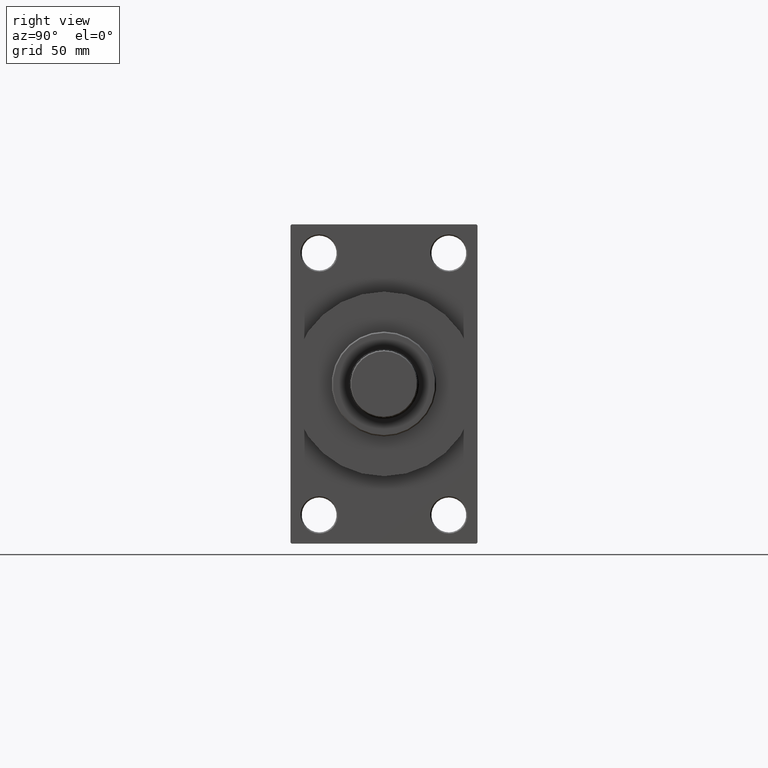
[diagram: clean part render]
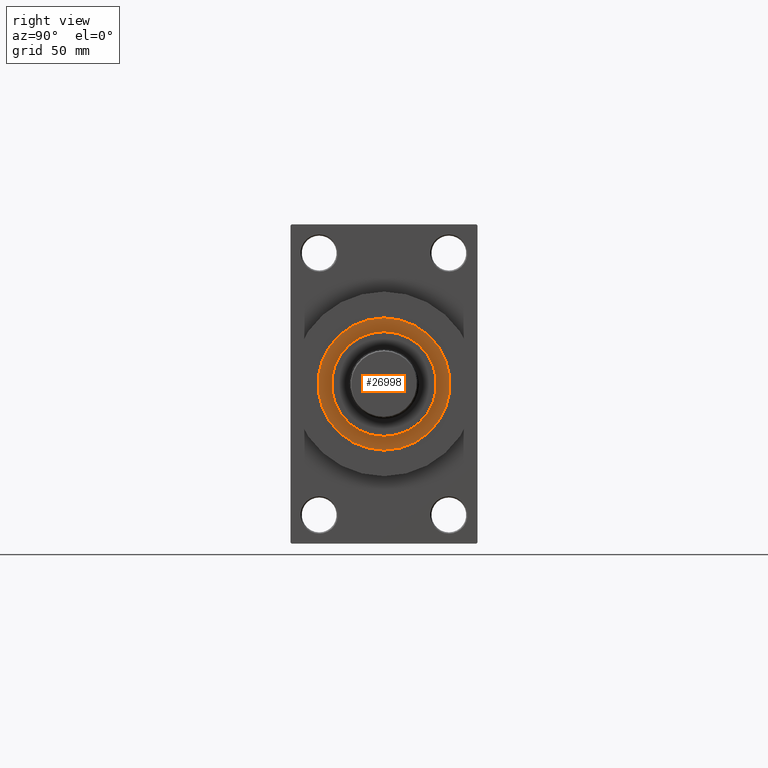
[diagram: same view with one face highlighted and labeled with its STEP entity id]
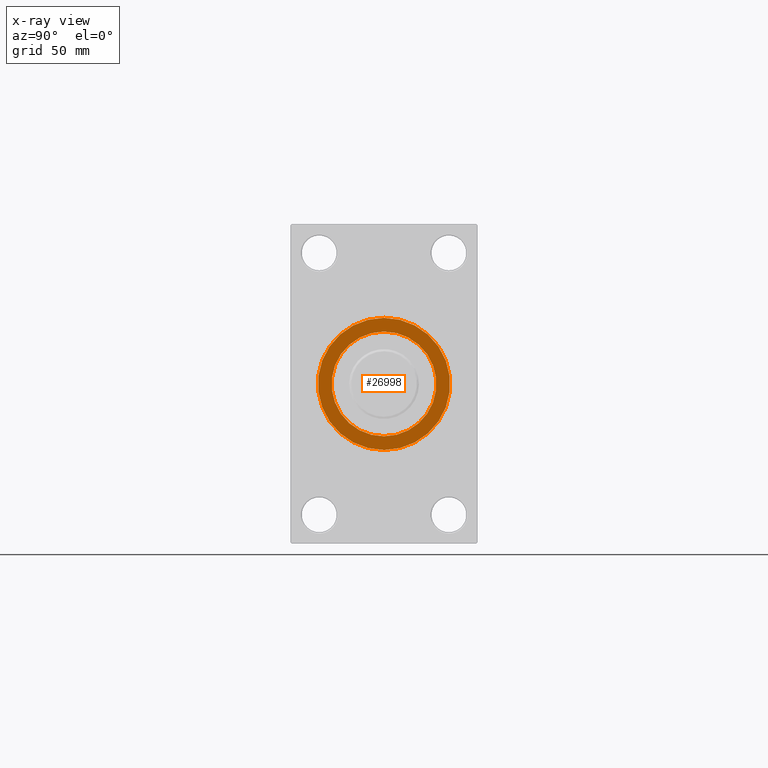
[diagram: x-ray of the same camera — body ghosted, the highlighted face saturated]
A machine part, right view. The second image highlights one B-rep face of the part: STEP entity #26998.
The next image is the same camera in x-ray: the body ghosted, the highlighted face saturated — about 0% of this face is hidden behind the body in this view.
In plain terms, the highlighted planar face has unit normal (1, 0, 0).
Its self-contained STEP definition (entity closure, byte-faithful):
#464 = FACE_BOUND ( 'NONE', #25136, .T. ) ;
#727 = CARTESIAN_POINT ( 'NONE',  ( 21.00000000000000000, 2.571758278209441661E-15, 43.25999999999999801 ) ) ;
#868 = AXIS2_PLACEMENT_3D ( 'NONE', #39634, #24213, #36006 ) ;
#6847 = ORIENTED_EDGE ( 'NONE', *, *, #13942, .F. ) ;
#9171 = EDGE_CURVE ( 'NONE', #32165, #22801, #13075, .T. ) ;
#11249 = EDGE_CURVE ( 'NONE', #32788, #43186, #37070, .T. ) ;
#11320 = CARTESIAN_POINT ( 'NONE',  ( 0.000000000000000000, 0.000000000000000000, 43.25999999999999801 ) ) ;
#11653 = EDGE_LOOP ( 'NONE', ( #27354, #43624 ) ) ;
#13075 = CIRCLE ( 'NONE', #29230, 21.00000000000000000 ) ;
#13942 = EDGE_CURVE ( 'NONE', #22801, #32165, #33269, .T. ) ;
#14758 = CARTESIAN_POINT ( 'NONE',  ( 0.000000000000000000, 0.000000000000000000, 43.25999999999999801 ) ) ;
#14947 = PLANE ( 'NONE',  #32890 ) ;
#15236 = DIRECTION ( 'NONE',  ( 0.000000000000000000, 0.000000000000000000, 1.000000000000000000 ) ) ;
#17045 = AXIS2_PLACEMENT_3D ( 'NONE', #14758, #15236, #29435 ) ;
#22660 = DIRECTION ( 'NONE',  ( 1.000000000000000000, 0.000000000000000000, -0.000000000000000000 ) ) ;
#22801 = VERTEX_POINT ( 'NONE', #46087 ) ;
#23125 = DIRECTION ( 'NONE',  ( 0.000000000000000000, 0.000000000000000000, 1.000000000000000000 ) ) ;
#23939 = CIRCLE ( 'NONE', #868, 26.50000000000000355 ) ;
#24213 = DIRECTION ( 'NONE',  ( 0.000000000000000000, 0.000000000000000000, 1.000000000000000000 ) ) ;
#24787 = DIRECTION ( 'NONE',  ( 1.000000000000000000, 0.000000000000000000, 0.000000000000000000 ) ) ;
#25136 = EDGE_LOOP ( 'NONE', ( #6847, #39260 ) ) ;
#26998 = ADVANCED_FACE ( 'NONE', ( #464, #41202 ), #14947, .T. ) ;
#27354 = ORIENTED_EDGE ( 'NONE', *, *, #43734, .T. ) ;
#29230 = AXIS2_PLACEMENT_3D ( 'NONE', #34567, #42281, #30261 ) ;
#29435 = DIRECTION ( 'NONE',  ( 1.000000000000000000, 0.000000000000000000, 0.000000000000000000 ) ) ;
#30261 = DIRECTION ( 'NONE',  ( 1.000000000000000000, 0.000000000000000000, 0.000000000000000000 ) ) ;
#32165 = VERTEX_POINT ( 'NONE', #727 ) ;
#32788 = VERTEX_POINT ( 'NONE', #46316 ) ;
#32890 = AXIS2_PLACEMENT_3D ( 'NONE', #11320, #23125, #22660 ) ;
#33269 = CIRCLE ( 'NONE', #41745, 21.00000000000000000 ) ;
#34567 = CARTESIAN_POINT ( 'NONE',  ( 0.000000000000000000, 0.000000000000000000, 43.25999999999999801 ) ) ;
#36006 = DIRECTION ( 'NONE',  ( 1.000000000000000000, 0.000000000000000000, 0.000000000000000000 ) ) ;
#37070 = CIRCLE ( 'NONE', #17045, 26.50000000000000355 ) ;
#38510 = DIRECTION ( 'NONE',  ( 0.000000000000000000, 0.000000000000000000, 1.000000000000000000 ) ) ;
#39260 = ORIENTED_EDGE ( 'NONE', *, *, #9171, .F. ) ;
#39634 = CARTESIAN_POINT ( 'NONE',  ( 0.000000000000000000, 0.000000000000000000, 43.25999999999999801 ) ) ;
#41202 = FACE_OUTER_BOUND ( 'NONE', #11653, .T. ) ;
#41745 = AXIS2_PLACEMENT_3D ( 'NONE', #42616, #38510, #24787 ) ;
#42281 = DIRECTION ( 'NONE',  ( 0.000000000000000000, 0.000000000000000000, 1.000000000000000000 ) ) ;
#42616 = CARTESIAN_POINT ( 'NONE',  ( 0.000000000000000000, 0.000000000000000000, 43.25999999999999801 ) ) ;
#43186 = VERTEX_POINT ( 'NONE', #46072 ) ;
#43624 = ORIENTED_EDGE ( 'NONE', *, *, #11249, .T. ) ;
#43734 = EDGE_CURVE ( 'NONE', #43186, #32788, #23939, .T. ) ;
#46072 = CARTESIAN_POINT ( 'NONE',  ( -26.50000000000000355, 0.000000000000000000, 43.25999999999999801 ) ) ;
#46087 = CARTESIAN_POINT ( 'NONE',  ( -21.00000000000000000, 0.000000000000000000, 43.25999999999999801 ) ) ;
#46316 = CARTESIAN_POINT ( 'NONE',  ( 26.50000000000000355, 3.245314017740486554E-15, 43.25999999999999801 ) ) ;